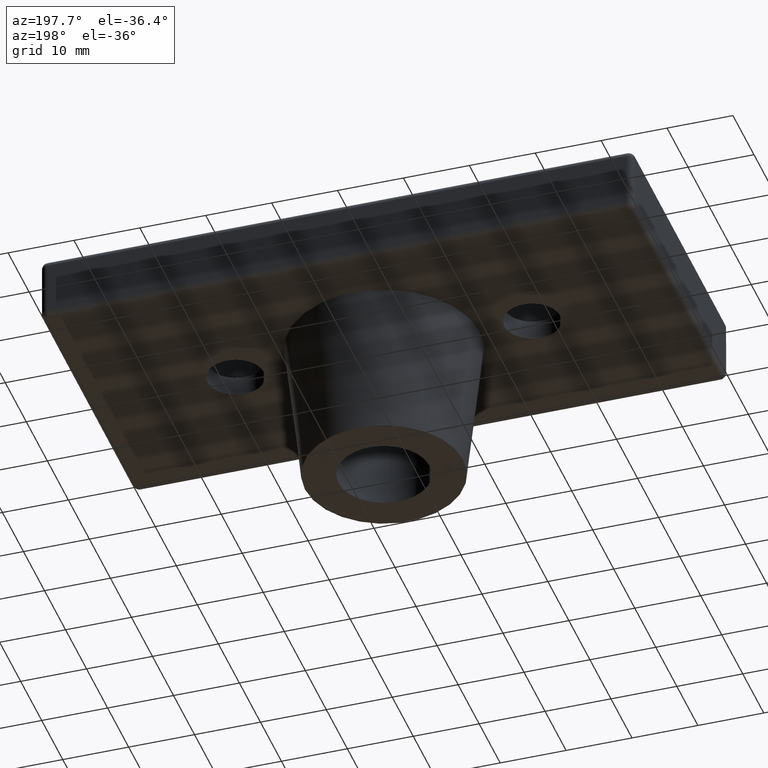
[diagram: clean part render]
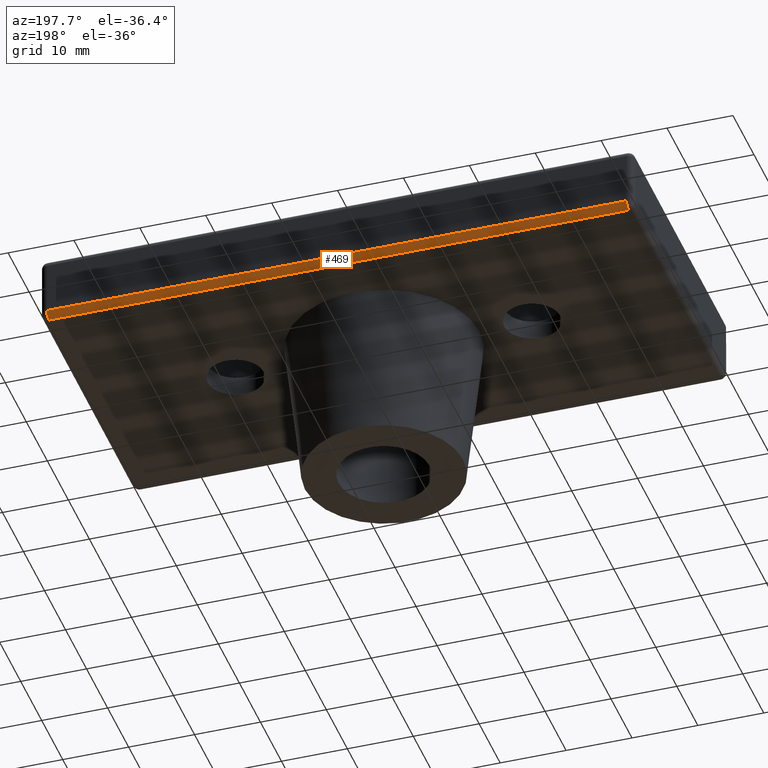
[diagram: same view with one face highlighted and labeled with its STEP entity id]
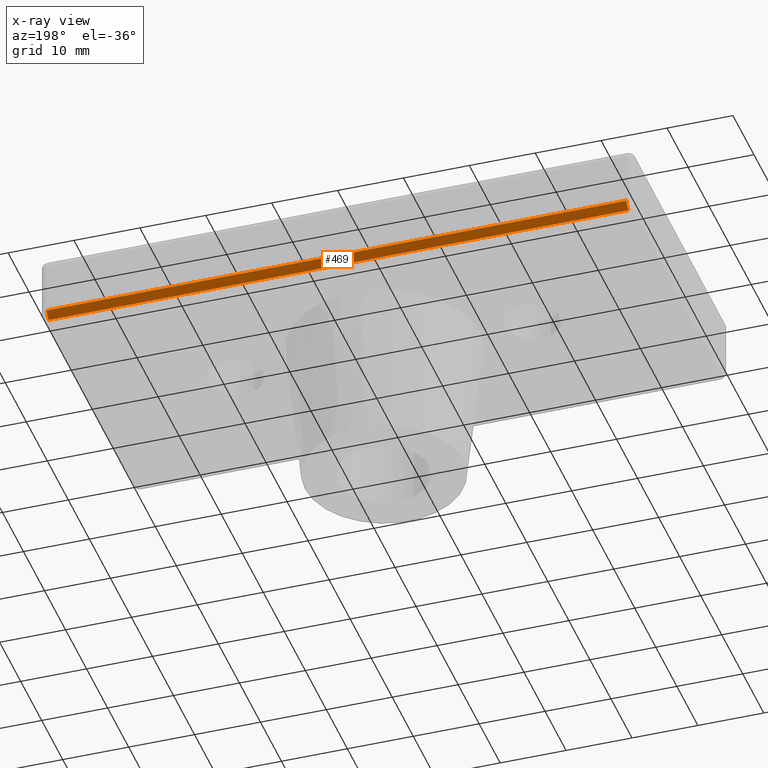
[diagram: x-ray of the same camera — body ghosted, the highlighted face saturated]
A machine part, auxiliary view. The second image highlights one B-rep face of the part: STEP entity #469.
The next image is the same camera in x-ray: the body ghosted, the highlighted face saturated — about 0% of this face is hidden behind the body in this view.
In plain terms, the highlighted cylindrical surface (edge-blend (fillet) strip) has radius 1 mm, axis along (-1, 0, 0).
Its self-contained STEP definition (entity closure, byte-faithful):
#31=LINE('',#779,#55);
#41=LINE('',#801,#65);
#55=VECTOR('',#612,87.999999998859);
#65=VECTOR('',#626,88.);
#115=FACE_OUTER_BOUND('',#165,.T.);
#165=EDGE_LOOP('',(#375,#376,#377,#378));
#196=CIRCLE('',#519,1.);
#200=CIRCLE('',#526,1.);
#237=VERTEX_POINT('',#777);
#238=VERTEX_POINT('',#778);
#247=VERTEX_POINT('',#798);
#248=VERTEX_POINT('',#800);
#273=EDGE_CURVE('',#237,#238,#31,.T.);
#283=EDGE_CURVE('',#247,#248,#41,.T.);
#292=EDGE_CURVE('',#237,#248,#196,.T.);
#296=EDGE_CURVE('',#238,#247,#200,.T.);
#375=ORIENTED_EDGE('',*,*,#292,.T.);
#376=ORIENTED_EDGE('',*,*,#283,.F.);
#377=ORIENTED_EDGE('',*,*,#296,.F.);
#378=ORIENTED_EDGE('',*,*,#273,.F.);
#440=CYLINDRICAL_SURFACE('',#525,1.);
#469=ADVANCED_FACE('',(#115),#440,.T.);
#519=AXIS2_PLACEMENT_3D('',#819,#648,#649);
#525=AXIS2_PLACEMENT_3D('',#825,#660,#661);
#526=AXIS2_PLACEMENT_3D('',#826,#662,#663);
#612=DIRECTION('',(-1.,0.,0.));
#626=DIRECTION('',(1.,0.,0.));
#648=DIRECTION('center_axis',(-1.,0.,0.));
#649=DIRECTION('ref_axis',(0.,0.,-1.));
#660=DIRECTION('center_axis',(-1.,0.,0.));
#661=DIRECTION('ref_axis',(0.,0.,1.));
#662=DIRECTION('center_axis',(-1.,0.,0.));
#663=DIRECTION('ref_axis',(0.,0.,1.));
#777=CARTESIAN_POINT('',(-0.70710678173827,22.5,0.707106781738325));
#778=CARTESIAN_POINT('',(-88.7071067805973,22.5,0.707106781775804));
#779=CARTESIAN_POINT('',(-0.707106781186493,22.5,0.707106781186548));
#798=CARTESIAN_POINT('',(-88.7071067811865,21.5,-0.292893218813451));
#800=CARTESIAN_POINT('',(-0.707106781186493,21.5,-0.292893218318756));
#801=CARTESIAN_POINT('',(-88.7071067811865,21.5,-0.292893218813449));
#819=CARTESIAN_POINT('Origin',(-0.707106781186493,21.5,0.707106781186548));
#825=CARTESIAN_POINT('Origin',(-0.707106771186489,21.5,0.707106781186548));
#826=CARTESIAN_POINT('Origin',(-88.7071067811865,21.5,0.707106781186548));